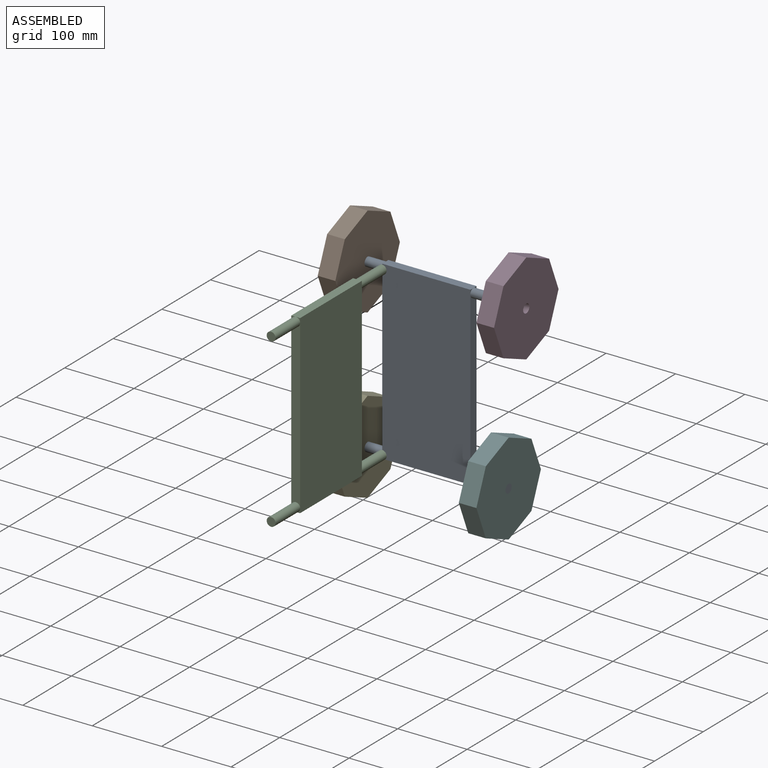
[diagram: assembled view]
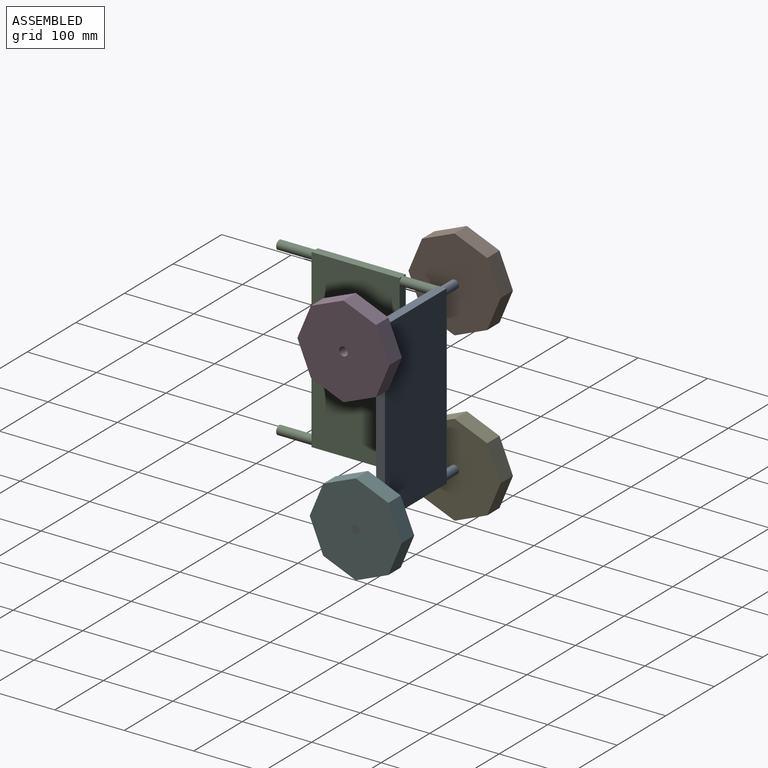
[diagram: assembled view, second angle]
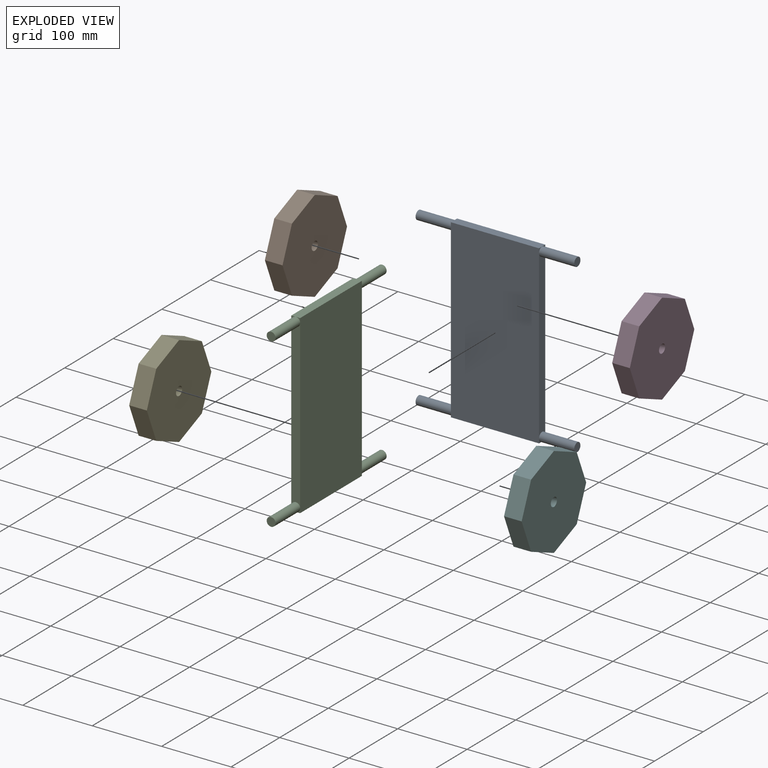
[diagram: exploded view]
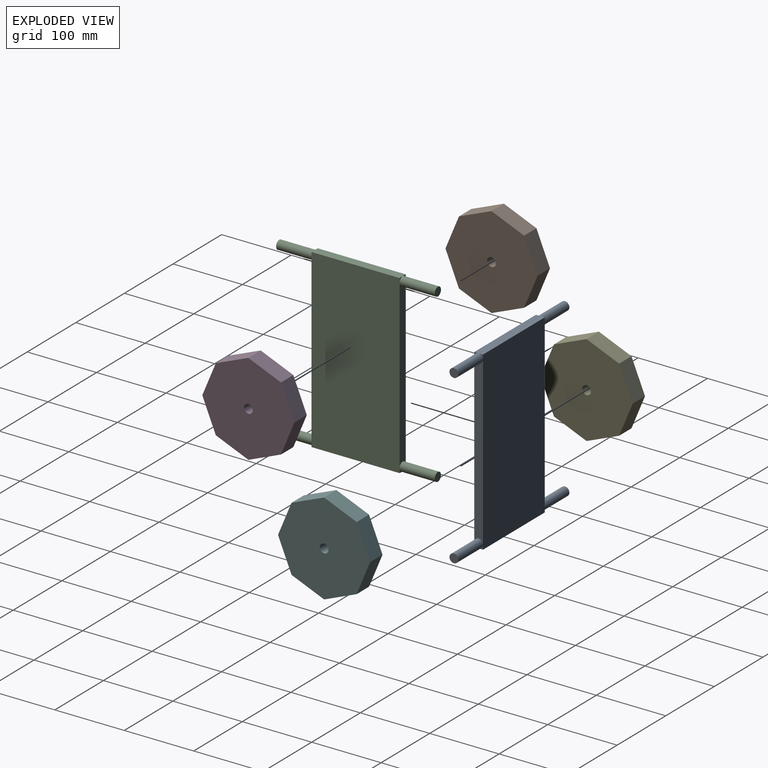
[diagram: exploded view, second angle]
ASSEMBLY  parts=6 mates=5
PART A: 22 faces, bbox 228.6x254x12.8 mm
  f0: plane 6.22x5.09mm, normal (-1,0,0), area 8mm2, adj f6,f8,f19
  f1: plane 254x12.7mm, normal (-1,0,0), area 2956.9mm2, adj f6,f7,f8,f9,f17,f19
  f2: plane 6.22x5.09mm, normal (1,0,0), area 8mm2, adj f6,f8,f13
  f3: plane 254x12.7mm, normal (1,0,0), area 2956.9mm2, adj f6,f7,f8,f9,f10,f13
  f4: plane 6.22x5.09mm, normal (1,0,0), area 8mm2, adj f7,f8,f10
  f5: plane 6.22x5.09mm, normal (-1,0,0), area 8mm2, adj f7,f8,f17
  f6: plane 127x12.7mm, normal (0,-1,0), area 1612.9mm2, adj f0,f1,f2,f3,f8,f9
  f7: plane 127x12.7mm, normal (0,1,0), area 1612.9mm2, adj f1,f3,f4,f5,f8,f9
  f8: plane 254x127mm, normal (0,0,1), area 32258mm2, adj f0,f1,f2,f3,f4,f5,f6,f7
  f9: plane 254x127mm, normal (0,0,-1), area 32258mm2, adj f1,f3,f6,f7
  f10: cylinder r=6.35mm len=50.8mm, axis (-1,0,0), area 2026.8mm2, adj f3,f4,f11,f12
  f11: plane 12.7x12.7mm, normal (1,0,0), area 126.7mm2, adj f10
  f12: plane 2.51x0.13mm, normal (-1,0,0), area 0.2mm2, adj f8,f10
  f13: cylinder r=6.35mm len=50.8mm, axis (-1,0,0), area 2026.8mm2, adj f2,f3,f14,f15
  f14: plane 12.7x12.7mm, normal (1,0,0), area 126.7mm2, adj f13
  f15: plane 2.51x0.13mm, normal (-1,0,0), area 0.2mm2, adj f8,f13
  f16: plane 12.7x12.7mm, normal (-1,0,0), area 126.7mm2, adj f17
  f17: cylinder r=6.35mm len=50.8mm, axis (1,0,0), area 2026.8mm2, adj f1,f5,f16,f18
  f18: plane 2.51x0.13mm, normal (1,0,0), area 0.2mm2, adj f8,f17
  f19: cylinder r=6.35mm len=50.8mm, axis (1,0,0), area 2026.8mm2, adj f0,f1,f20,f21
  f20: plane 12.7x12.7mm, normal (-1,0,0), area 126.7mm2, adj f19
  f21: plane 2.51x0.13mm, normal (1,0,0), area 0.2mm2, adj f8,f19
PART B: 11 faces, bbox 132.7x132.7x25.4 mm
  f0: plane 46.93x25.4mm, normal (-0.38,0.92,0), area 1290.3mm2, adj f1,f7,f8,f9
  f1: plane 46.93x25.4mm, normal (-0.92,0.38,0), area 1290.3mm2, adj f0,f2,f8,f9
  f2: plane 46.93x25.4mm, normal (-0.92,-0.38,0), area 1290.3mm2, adj f1,f3,f8,f9
  f3: plane 46.93x25.4mm, normal (-0.38,-0.92,0), area 1290.3mm2, adj f2,f4,f8,f9
  f4: plane 46.93x25.4mm, normal (0.38,-0.92,0), area 1290.3mm2, adj f3,f5,f8,f9
  f5: plane 46.93x25.4mm, normal (0.92,-0.38,0), area 1290.3mm2, adj f4,f6,f8,f9
  f6: plane 46.93x25.4mm, normal (0.92,0.38,0), area 1290.3mm2, adj f5,f7,f8,f9
  f7: plane 46.93x25.4mm, normal (0.38,0.92,0), area 1290.3mm2, adj f0,f6,f8,f9
  f8: plane 132.75x132.75mm, normal (0,0,1), area 12333.8mm2, adj f0,f1,f2,f3,f4,f5,f6,f7
  f9: plane 132.75x132.75mm, normal (0,0,-1), area 12333.8mm2, adj f0,f1,f2,f3,f4,f5,f6,f7
  f10: cylinder r=6.35mm len=25.4mm, axis (0,0,-1), area 1013.4mm2, adj f8,f9
PART C: same geometry as A
PART D: same geometry as B
PART E: same geometry as B
PART F: same geometry as B
PLACE A rot(axis=(1,0,0),90deg) t=(0,0,0)mm
PLACE B rot(axis=(0,-1,0),90deg) t=(-88.9,-6.48,120.65)mm
PLACE C rot(axis=(0.58,0.58,0.58),120deg) t=(-69.98,-127,-1.26)mm
PLACE D rot(axis=(0,-1,0),90deg) t=(139.7,-6.48,120.65)mm
PLACE E rot(axis=(0,-1,0),90deg) t=(-88.9,-6.48,-120.65)mm
PLACE F rot(axis=(0,1,0),90deg) t=(88.9,-6.48,-120.65)mm
MATE revolute E.f10 <-> A.f19  axis (-1,0,0) through (-114.3,-6.48,-120.65)mm
MATE revolute C.f10 <-> A.f8  axis (0,1,0) through (-63.5,-12.7,119.39)mm
MATE revolute F.f10 <-> A.f13  axis (1,0,0) through (114.3,-6.48,-120.65)mm
MATE revolute B.f10 <-> A.f17  axis (-1,0,0) through (-114.3,-6.48,120.65)mm
MATE revolute D.f10 <-> A.f10  axis (-1,0,0) through (114.3,-6.48,120.65)mm
